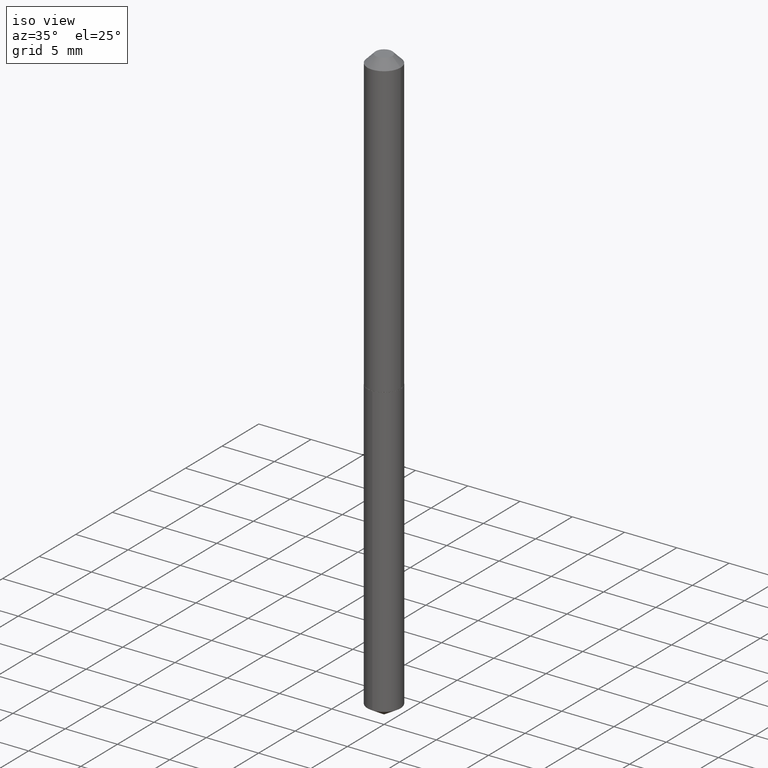
[diagram: clean part render]
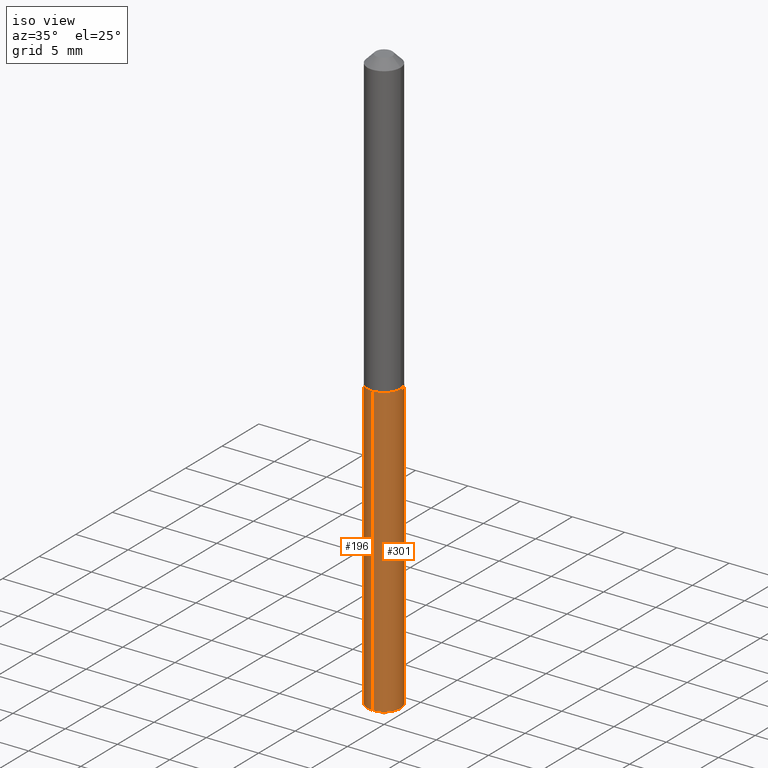
[diagram: same view with one multi-face feature highlighted, each face labeled with its STEP entity id]
A machine part, iso view. The highlighted faces form ONE feature: a constant-radius fillet chain: 2 tangent blend faces with common blend radius 1.5875 mm. The faces share edges in the B-rep.
Their STEP definitions:
[1] entity #196 (Cylinder):
#2 = EDGE_CURVE ( 'NONE', #144, #344, #35, .T. ) ;
#35 = LINE ( 'NONE', #280, #382 ) ;
#57 = CARTESIAN_POINT ( 'NONE',  ( 4.440892098501167517E-16, 0.06249999999999229089, -2.212446211310778121 ) ) ;
#59 = VECTOR ( 'NONE', #123, 39.37007874015748143 ) ;
#67 = DIRECTION ( 'NONE',  ( -6.982962677686265922E-15, -1.000000000000000000, 4.370956789862821150E-15 ) ) ;
#80 = VERTEX_POINT ( 'NONE', #93 ) ;
#93 = CARTESIAN_POINT ( 'NONE',  ( -4.364351673553376324E-16, -0.06250000000000772993, -2.212446211310777233 ) ) ;
#113 = DIRECTION ( 'NONE',  ( -2.445476234488650403E-29, 3.491470701089721199E-15, 1.000000000000000000 ) ) ;
#123 = DIRECTION ( 'NONE',  ( -2.445476234488650123E-29, 3.491470701089721199E-15, 1.000000000000000000 ) ) ;
#127 = EDGE_LOOP ( 'NONE', ( #377, #238, #373, #288 ) ) ;
#130 = CARTESIAN_POINT ( 'NONE',  ( 4.440892098501169490E-16, 0.06249999999999607952, -1.125000000000000222 ) ) ;
#144 = VERTEX_POINT ( 'NONE', #57 ) ;
#148 = CYLINDRICAL_SURFACE ( 'NONE', #343, 0.06250000000000000000 ) ;
#154 = CARTESIAN_POINT ( 'NONE',  ( 2.751152406958278671E-29, -3.927916506198539224E-15, -1.125000000000000000 ) ) ;
#158 = DIRECTION ( 'NONE',  ( -2.445476234488650123E-29, 3.491470701089721199E-15, 1.000000000000000000 ) ) ;
#173 = EDGE_CURVE ( 'NONE', #144, #80, #227, .T. ) ;
#182 = CARTESIAN_POINT ( 'NONE',  ( 5.410476273003508359E-29, -7.724703092001141037E-15, -2.212446211310777677 ) ) ;
#196 = ADVANCED_FACE ( 'NONE', ( #379 ), #148, .T. ) ;
#210 = CIRCLE ( 'NONE', #260, 0.06250000000000000000 ) ;
#211 = DIRECTION ( 'NONE',  ( -6.982962677686265922E-15, -1.000000000000000000, 4.370956789862821150E-15 ) ) ;
#227 = CIRCLE ( 'NONE', #284, 0.06250000000000000000 ) ;
#233 = VERTEX_POINT ( 'NONE', #303 ) ;
#238 = ORIENTED_EDGE ( 'NONE', *, *, #173, .T. ) ;
#244 = CARTESIAN_POINT ( 'NONE',  ( 2.751152406958278671E-29, -3.927916506198539224E-15, -1.125000000000000000 ) ) ;
#245 = LINE ( 'NONE', #310, #59 ) ;
#260 = AXIS2_PLACEMENT_3D ( 'NONE', #244, #359, #67 ) ;
#263 = DIRECTION ( 'NONE',  ( -6.982962677686265922E-15, -1.000000000000000000, 4.370956789862821150E-15 ) ) ;
#280 = CARTESIAN_POINT ( 'NONE',  ( 4.440892098500901277E-16, 0.06249999999999607259, -1.125000000000000222 ) ) ;
#284 = AXIS2_PLACEMENT_3D ( 'NONE', #182, #356, #211 ) ;
#288 = ORIENTED_EDGE ( 'NONE', *, *, #360, .F. ) ;
#303 = CARTESIAN_POINT ( 'NONE',  ( -4.364351673553640593E-16, -0.06250000000000392741, -1.124999999999999778 ) ) ;
#310 = CARTESIAN_POINT ( 'NONE',  ( -4.364351673553640593E-16, -0.06250000000000392741, -1.124999999999999778 ) ) ;
#341 = EDGE_CURVE ( 'NONE', #80, #233, #245, .T. ) ;
#343 = AXIS2_PLACEMENT_3D ( 'NONE', #154, #113, #263 ) ;
#344 = VERTEX_POINT ( 'NONE', #130 ) ;
#356 = DIRECTION ( 'NONE',  ( -2.445476234488650403E-29, 3.491470701089721199E-15, 1.000000000000000000 ) ) ;
#359 = DIRECTION ( 'NONE',  ( -2.445476234488650403E-29, 3.491470701089721199E-15, 1.000000000000000000 ) ) ;
#360 = EDGE_CURVE ( 'NONE', #344, #233, #210, .T. ) ;
#373 = ORIENTED_EDGE ( 'NONE', *, *, #341, .T. ) ;
#377 = ORIENTED_EDGE ( 'NONE', *, *, #2, .F. ) ;
#379 = FACE_OUTER_BOUND ( 'NONE', #127, .T. ) ;
#382 = VECTOR ( 'NONE', #158, 39.37007874015748143 ) ;
[2] entity #301 (Cylinder):
#2 = EDGE_CURVE ( 'NONE', #144, #344, #35, .T. ) ;
#26 = DIRECTION ( 'NONE',  ( -2.445476234488650403E-29, 3.491470701089721199E-15, 1.000000000000000000 ) ) ;
#30 = CARTESIAN_POINT ( 'NONE',  ( 2.751152406958278671E-29, -3.927916506198539224E-15, -1.125000000000000000 ) ) ;
#35 = LINE ( 'NONE', #280, #382 ) ;
#39 = AXIS2_PLACEMENT_3D ( 'NONE', #63, #218, #214 ) ;
#57 = CARTESIAN_POINT ( 'NONE',  ( 4.440892098501167517E-16, 0.06249999999999229089, -2.212446211310778121 ) ) ;
#59 = VECTOR ( 'NONE', #123, 39.37007874015748143 ) ;
#63 = CARTESIAN_POINT ( 'NONE',  ( 2.751152406958278671E-29, -3.927916506198539224E-15, -1.125000000000000000 ) ) ;
#80 = VERTEX_POINT ( 'NONE', #93 ) ;
#87 = CARTESIAN_POINT ( 'NONE',  ( 5.410476273003508359E-29, -7.724703092001141037E-15, -2.212446211310777677 ) ) ;
#90 = FACE_OUTER_BOUND ( 'NONE', #138, .T. ) ;
#93 = CARTESIAN_POINT ( 'NONE',  ( -4.364351673553376324E-16, -0.06250000000000772993, -2.212446211310777233 ) ) ;
#102 = AXIS2_PLACEMENT_3D ( 'NONE', #30, #157, #128 ) ;
#123 = DIRECTION ( 'NONE',  ( -2.445476234488650123E-29, 3.491470701089721199E-15, 1.000000000000000000 ) ) ;
#128 = DIRECTION ( 'NONE',  ( -6.982962677686265922E-15, -1.000000000000000000, 4.370956789862821150E-15 ) ) ;
#129 = CIRCLE ( 'NONE', #39, 0.06250000000000000000 ) ;
#130 = CARTESIAN_POINT ( 'NONE',  ( 4.440892098501169490E-16, 0.06249999999999607952, -1.125000000000000222 ) ) ;
#138 = EDGE_LOOP ( 'NONE', ( #290, #229, #147, #369 ) ) ;
#144 = VERTEX_POINT ( 'NONE', #57 ) ;
#147 = ORIENTED_EDGE ( 'NONE', *, *, #274, .F. ) ;
#157 = DIRECTION ( 'NONE',  ( -2.445476234488650403E-29, 3.491470701089721199E-15, 1.000000000000000000 ) ) ;
#158 = DIRECTION ( 'NONE',  ( -2.445476234488650123E-29, 3.491470701089721199E-15, 1.000000000000000000 ) ) ;
#159 = EDGE_CURVE ( 'NONE', #80, #144, #234, .T. ) ;
#214 = DIRECTION ( 'NONE',  ( -6.982962677686265922E-15, -1.000000000000000000, 4.370956789862821150E-15 ) ) ;
#218 = DIRECTION ( 'NONE',  ( -2.445476234488650403E-29, 3.491470701089721199E-15, 1.000000000000000000 ) ) ;
#229 = ORIENTED_EDGE ( 'NONE', *, *, #2, .T. ) ;
#233 = VERTEX_POINT ( 'NONE', #303 ) ;
#234 = CIRCLE ( 'NONE', #374, 0.06250000000000000000 ) ;
#245 = LINE ( 'NONE', #310, #59 ) ;
#274 = EDGE_CURVE ( 'NONE', #233, #344, #129, .T. ) ;
#280 = CARTESIAN_POINT ( 'NONE',  ( 4.440892098500901277E-16, 0.06249999999999607259, -1.125000000000000222 ) ) ;
#290 = ORIENTED_EDGE ( 'NONE', *, *, #159, .T. ) ;
#301 = ADVANCED_FACE ( 'NONE', ( #90 ), #304, .T. ) ;
#303 = CARTESIAN_POINT ( 'NONE',  ( -4.364351673553640593E-16, -0.06250000000000392741, -1.124999999999999778 ) ) ;
#304 = CYLINDRICAL_SURFACE ( 'NONE', #102, 0.06250000000000000000 ) ;
#310 = CARTESIAN_POINT ( 'NONE',  ( -4.364351673553640593E-16, -0.06250000000000392741, -1.124999999999999778 ) ) ;
#327 = DIRECTION ( 'NONE',  ( -6.982962677686265922E-15, -1.000000000000000000, 4.370956789862821150E-15 ) ) ;
#341 = EDGE_CURVE ( 'NONE', #80, #233, #245, .T. ) ;
#344 = VERTEX_POINT ( 'NONE', #130 ) ;
#369 = ORIENTED_EDGE ( 'NONE', *, *, #341, .F. ) ;
#374 = AXIS2_PLACEMENT_3D ( 'NONE', #87, #26, #327 ) ;
#382 = VECTOR ( 'NONE', #158, 39.37007874015748143 ) ;